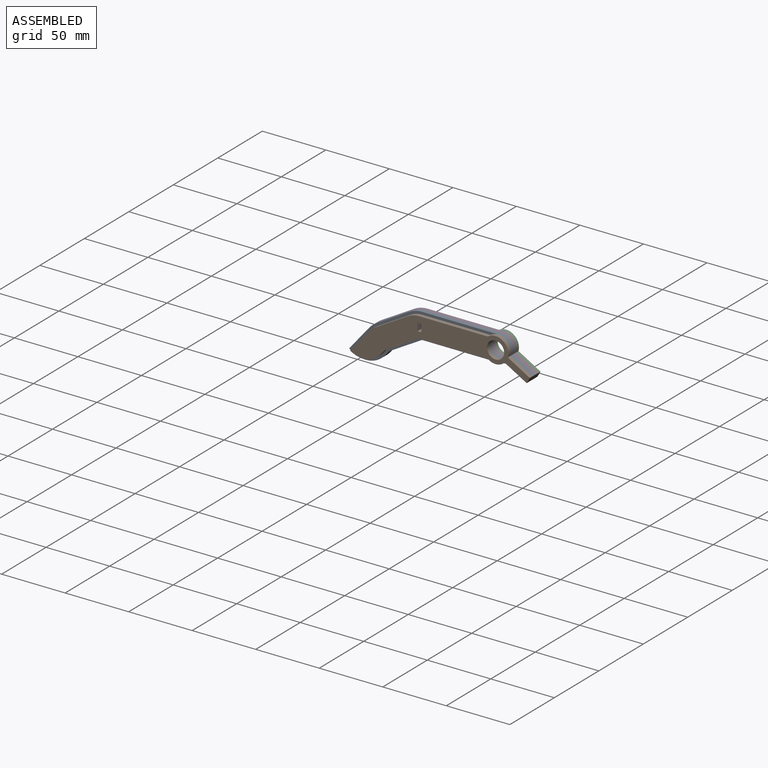
[diagram: assembled view]
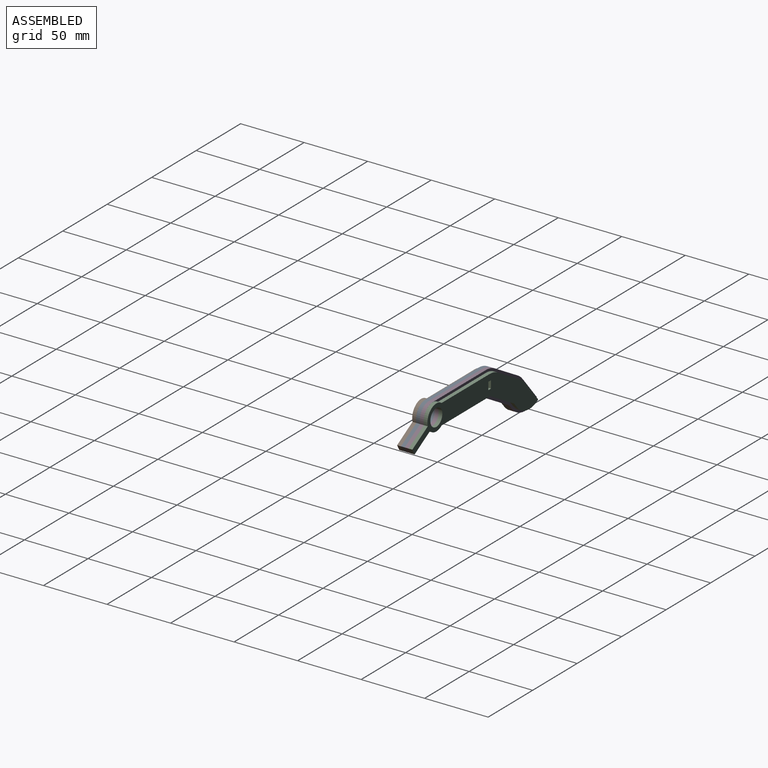
[diagram: assembled view, second angle]
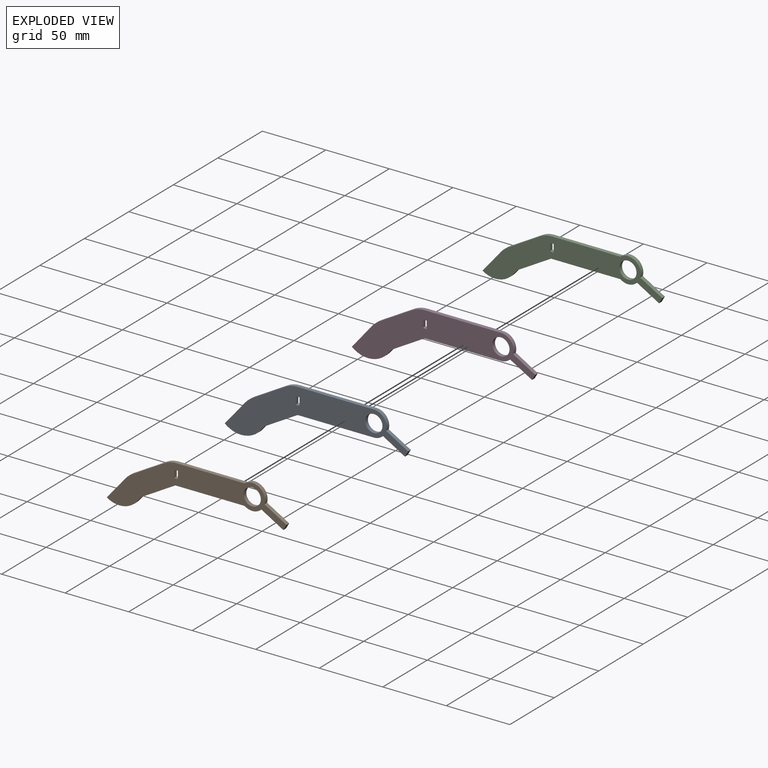
[diagram: exploded view]
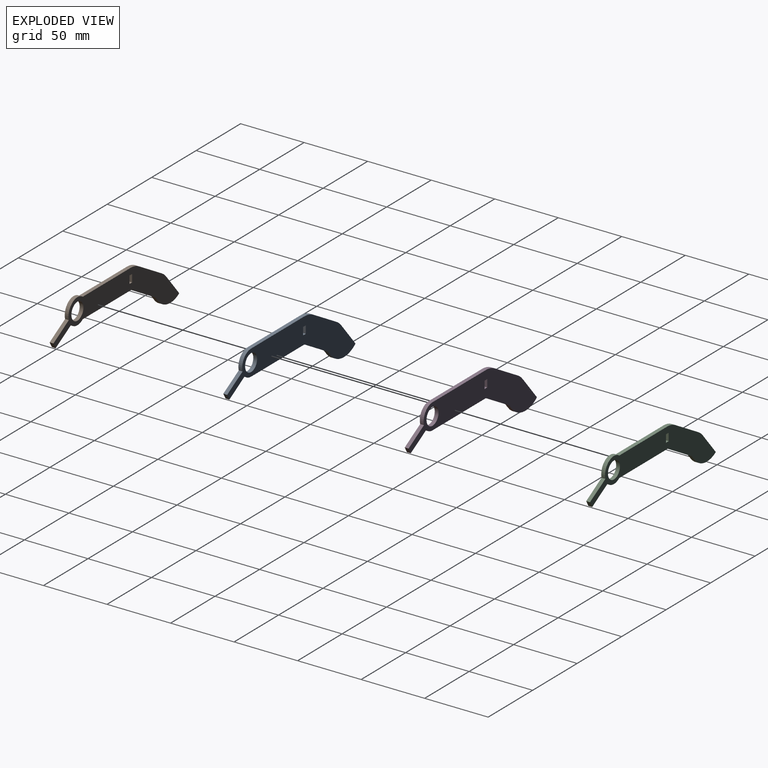
[diagram: exploded view, second angle]
ASSEMBLY  parts=4 mates=3
PART A: 23 faces, bbox 144.3x3x46 mm
  f0: cylinder r=20mm len=10mm, axis (0,1,0), area 31.4mm2, adj f1,f18,f19,f20
  f1: plane 25.98x15mm, normal (-0.5,0,0.87), area 90mm2, adj f0,f2,f19,f20
  f2: cylinder r=20mm len=5.32mm, axis (0,1,0), area 20.9mm2, adj f1,f3,f19,f20
  f3: plane 19.15x16.07mm, normal (-0.77,0,0.64), area 75mm2, adj f2,f4,f19,f20
  f4: cylinder r=20mm len=28.18mm, axis (0,1,0), area 94.2mm2, adj f3,f5,f19,f20
  f5: plane 3.43x3mm, normal (0.77,0,-0.64), area 13.4mm2, adj f4,f19,f20,f21
  f6: plane 24.83x14.33mm, normal (0.5,0,-0.87), area 86mm2, adj f19,f20,f21,f22
  f7: plane 59.2x3mm, normal (0,0,-1), area 177.6mm2, adj f8,f19,f20,f22
  f8: cylinder r=10mm len=7.14mm, axis (0,1,0), area 23.8mm2, adj f7,f9,f19,f20
  f9: plane 17.32x10mm, normal (-0.5,0,-0.87), area 60mm2, adj f8,f10,f19,f20
  f10: plane 4.33x3mm, normal (0.87,0,-0.5), area 15mm2, adj f9,f11,f19,f20
  f11: plane 17.32x10mm, normal (0.5,0,0.87), area 60mm2, adj f10,f12,f19,f20
  f12: cylinder r=10mm len=12.68mm, axis (0,1,0), area 55.3mm2, adj f11,f18,f19,f20
  f13: plane 3x3mm, normal (0,0,-1), area 9mm2, adj f14,f16,f19,f20
  f14: plane 6x3mm, normal (-1,0,0), area 18mm2, adj f13,f15,f19,f20
  f15: plane 3x3mm, normal (0,0,1), area 9mm2, adj f14,f16,f19,f20
  f16: plane 6x3mm, normal (1,0,0), area 18mm2, adj f13,f15,f19,f20
  f17: cylinder r=6.75mm len=13.5mm, axis (0,1,0), area 127.2mm2, adj f19,f20
  f18: plane 60x3mm, normal (0,0,1), area 180mm2, adj f0,f12,f19,f20
  f19: plane 144.33x45.97mm, normal (0,-1,0), area 2483.6mm2, adj f0,f1,f2,f3,f4,f5,f6,f7
  f20: plane 144.33x45.97mm, normal (0,1,0), area 2483.6mm2, adj f0,f1,f2,f3,f4,f5,f6,f7
  f21: cylinder r=3mm len=3mm, axis (0,-1,0), area 3.1mm2, adj f5,f6,f19,f20
  f22: cylinder r=3mm len=3mm, axis (0,-1,0), area 4.7mm2, adj f6,f7,f19,f20
PART B: 21 faces, bbox 141.4x3x44 mm
  f0: plane 3x3mm, normal (0,0,-1), area 9mm2, adj f1,f18,f19,f20
  f1: plane 6x3mm, normal (-1,0,0), area 18mm2, adj f0,f2,f19,f20
  f2: plane 3x3mm, normal (0,0,1), area 9mm2, adj f1,f18,f19,f20
  f3: cylinder r=10mm len=13.14mm, axis (0,1,0), area 43.1mm2, adj f4,f17,f19,f20
  f4: plane 17.32x10mm, normal (-0.5,0,-0.87), area 60mm2, adj f3,f5,f19,f20
  f5: plane 4.33x3mm, normal (0.87,0,-0.5), area 15mm2, adj f4,f6,f19,f20
  f6: plane 17.32x10mm, normal (0.5,0,0.87), area 60mm2, adj f5,f7,f19,f20
  f7: cylinder r=10mm len=16mm, axis (0,1,0), area 74.6mm2, adj f6,f8,f19,f20
  f8: plane 54x3mm, normal (0,0,1), area 162mm2, adj f7,f9,f19,f20
  f9: cylinder r=18mm len=9mm, axis (0,1,0), area 28.3mm2, adj f8,f10,f19,f20
  f10: plane 25.98x15mm, normal (-0.5,0,0.87), area 90mm2, adj f9,f11,f19,f20
  f11: cylinder r=18mm len=4.79mm, axis (0,1,0), area 18.8mm2, adj f10,f12,f19,f20
  f12: plane 17.53x14.71mm, normal (-0.77,0,0.64), area 68.7mm2, adj f11,f13,f19,f20
  f13: cylinder r=18mm len=23.76mm, axis (0,1,0), area 78.8mm2, adj f12,f14,f19,f20
  f14: plane 4.1x3.44mm, normal (0.77,0,-0.64), area 16.1mm2, adj f13,f15,f19,f20
  f15: plane 26.75x15.44mm, normal (0.5,0,-0.87), area 92.7mm2, adj f14,f17,f19,f20
  f16: cylinder r=6.75mm len=13.5mm, axis (0,1,0), area 127.2mm2, adj f19,f20
  f17: plane 54.54x3mm, normal (0,0,-1), area 163.6mm2, adj f3,f15,f19,f20
  f18: plane 6x3mm, normal (1,0,0), area 18mm2, adj f0,f2,f19,f20
  f19: plane 141.44x43.97mm, normal (0,-1,0), area 1989.4mm2, adj f0,f1,f2,f3,f4,f5,f6,f7
  f20: plane 141.44x43.97mm, normal (0,1,0), area 1989.4mm2, adj f0,f1,f2,f3,f4,f5,f6,f7
PART C: same geometry as B
PART D: same geometry as A
PLACE A t=(31.88,1.48,-2.66)mm fixed
PLACE B t=(31.88,-1.52,-2.66)mm
PLACE C t=(31.88,7.48,-2.66)mm
PLACE D t=(31.88,4.48,-2.66)mm
MATE fastened A.f20 <-> D.f19  axis (0,1,0) through (7.67,1.48,-9.85)mm
MATE fastened A.f8 <-> B.f3  axis (0,-1,0) through (61.88,-1.52,-2.66)mm
MATE fastened D.f8 <-> C.f3  axis (0,1,0) through (61.88,4.48,-2.66)mm
